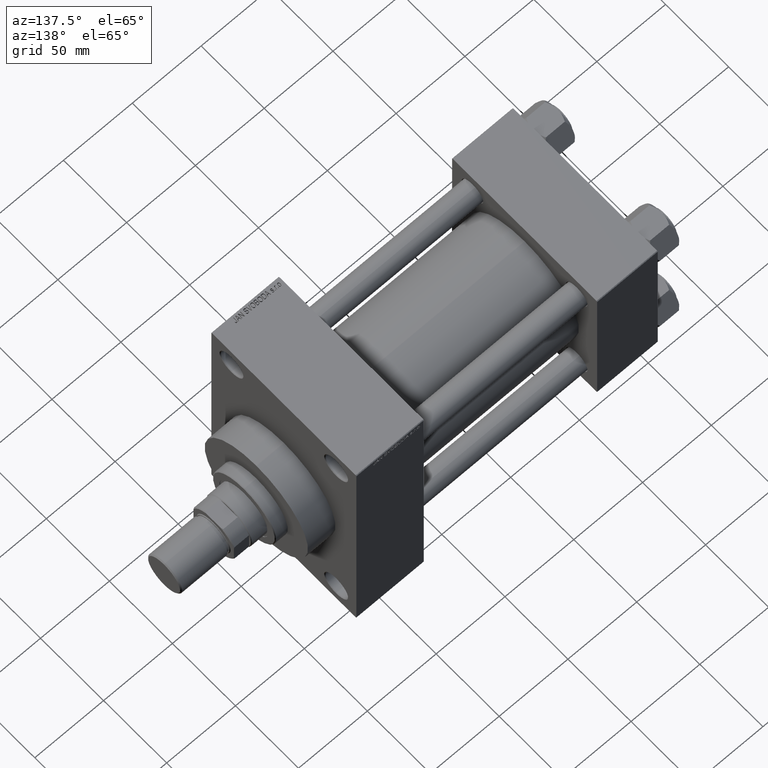
[diagram: clean part render]
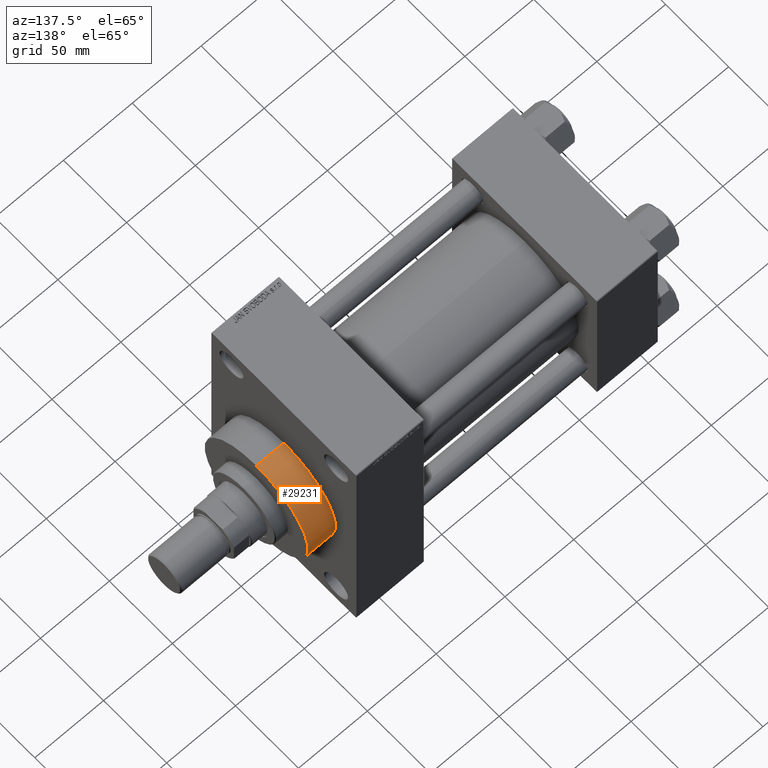
[diagram: same view with one face highlighted and labeled with its STEP entity id]
A machine part, auxiliary view. The second image highlights one B-rep face of the part: STEP entity #29231.
In plain terms, the highlighted cylindrical surface (partial cylindrical patch) has radius 41 mm, axis along (-1, -0, -0).
Its self-contained STEP definition (entity closure, byte-faithful):
#752 = AXIS2_PLACEMENT_3D ( 'NONE', #27478, #49966, #19937 ) ;
#1541 = CIRCLE ( 'NONE', #752, 41.00000000000000000 ) ;
#1658 = CIRCLE ( 'NONE', #9699, 41.00000000000000000 ) ;
#7484 = CARTESIAN_POINT ( 'NONE',  ( 238.9999999999999716, 0.000000000000000000, 41.00000000000000000 ) ) ;
#9244 = AXIS2_PLACEMENT_3D ( 'NONE', #30381, #30627, #10737 ) ;
#9699 = AXIS2_PLACEMENT_3D ( 'NONE', #45153, #26212, #10583 ) ;
#10139 = CARTESIAN_POINT ( 'NONE',  ( 238.9999999999999716, 5.021051876504148963E-15, -41.00000000000000000 ) ) ;
#10583 = DIRECTION ( 'NONE',  ( 0.000000000000000000, 0.000000000000000000, -1.000000000000000000 ) ) ;
#10737 = DIRECTION ( 'NONE',  ( 0.000000000000000000, 0.000000000000000000, 1.000000000000000000 ) ) ;
#11471 = DIRECTION ( 'NONE',  ( -1.000000000000000000, -0.000000000000000000, -0.000000000000000000 ) ) ;
#13104 = VERTEX_POINT ( 'NONE', #32946 ) ;
#14270 = CYLINDRICAL_SURFACE ( 'NONE', #9244, 41.00000000000000000 ) ;
#14758 = CARTESIAN_POINT ( 'NONE',  ( 238.9999999999999716, 5.021051876504148963E-15, -41.00000000000000000 ) ) ;
#15252 = FACE_OUTER_BOUND ( 'NONE', #36914, .T. ) ;
#16599 = ORIENTED_EDGE ( 'NONE', *, *, #47302, .T. ) ;
#17230 = EDGE_CURVE ( 'NONE', #38339, #22344, #38700, .T. ) ;
#19937 = DIRECTION ( 'NONE',  ( 0.000000000000000000, 0.000000000000000000, -1.000000000000000000 ) ) ;
#22344 = VERTEX_POINT ( 'NONE', #40116 ) ;
#22596 = CARTESIAN_POINT ( 'NONE',  ( 238.9999999999999716, 0.000000000000000000, 41.00000000000000000 ) ) ;
#25869 = ORIENTED_EDGE ( 'NONE', *, *, #26946, .F. ) ;
#26212 = DIRECTION ( 'NONE',  ( 1.000000000000000000, 0.000000000000000000, 0.000000000000000000 ) ) ;
#26946 = EDGE_CURVE ( 'NONE', #36752, #13104, #48877, .T. ) ;
#27047 = ORIENTED_EDGE ( 'NONE', *, *, #44400, .F. ) ;
#27478 = CARTESIAN_POINT ( 'NONE',  ( 238.9999999999999716, 0.000000000000000000, 0.000000000000000000 ) ) ;
#29231 = ADVANCED_FACE ( 'NONE', ( #15252 ), #14270, .T. ) ;
#29554 = ORIENTED_EDGE ( 'NONE', *, *, #17230, .T. ) ;
#30381 = CARTESIAN_POINT ( 'NONE',  ( 238.9999999999999716, 0.000000000000000000, 0.000000000000000000 ) ) ;
#30627 = DIRECTION ( 'NONE',  ( -1.000000000000000000, -0.000000000000000000, -0.000000000000000000 ) ) ;
#32946 = CARTESIAN_POINT ( 'NONE',  ( 218.9999999999999716, 0.000000000000000000, 41.00000000000000000 ) ) ;
#34222 = DIRECTION ( 'NONE',  ( -1.000000000000000000, -0.000000000000000000, -0.000000000000000000 ) ) ;
#35788 = VECTOR ( 'NONE', #11471, 1000.000000000000000 ) ;
#36752 = VERTEX_POINT ( 'NONE', #22596 ) ;
#36914 = EDGE_LOOP ( 'NONE', ( #27047, #29554, #16599, #25869 ) ) ;
#38339 = VERTEX_POINT ( 'NONE', #10139 ) ;
#38700 = LINE ( 'NONE', #14758, #35788 ) ;
#39791 = VECTOR ( 'NONE', #34222, 1000.000000000000000 ) ;
#40116 = CARTESIAN_POINT ( 'NONE',  ( 218.9999999999999716, 5.021051876504148963E-15, -41.00000000000000000 ) ) ;
#44400 = EDGE_CURVE ( 'NONE', #38339, #36752, #1541, .T. ) ;
#45153 = CARTESIAN_POINT ( 'NONE',  ( 218.9999999999999716, 0.000000000000000000, 0.000000000000000000 ) ) ;
#47302 = EDGE_CURVE ( 'NONE', #22344, #13104, #1658, .T. ) ;
#48877 = LINE ( 'NONE', #7484, #39791 ) ;
#49966 = DIRECTION ( 'NONE',  ( 1.000000000000000000, 0.000000000000000000, 0.000000000000000000 ) ) ;